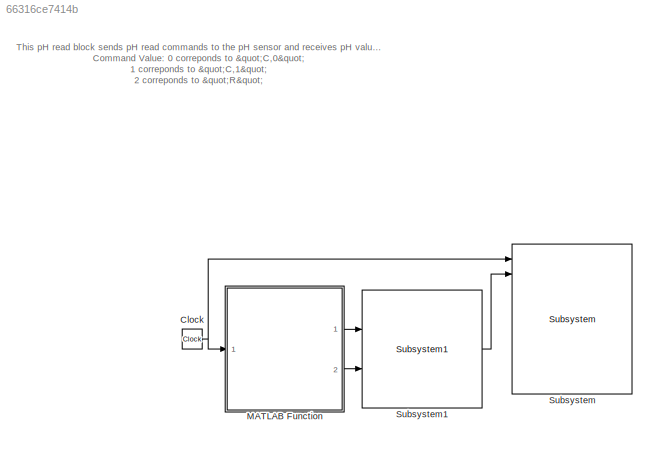
MODEL slx_66316ce7414b
KIND model
CONFIG AbsTol = auto
CONFIG EnableMultiTasking = on
CONFIG FixedStep = 1
CONFIG MaxStep = auto
CONFIG MinStep = auto
CONFIG RelTol = 1e-3
CONFIG SampleTimeConstraint = Unconstrained
CONFIG Solver = FixedStepDiscrete
CONFIG SolverName = FixedStepDiscrete
CONFIG StartTime = 0.0
CONFIG StopTime = 500
BLOCK [Clock] Clock
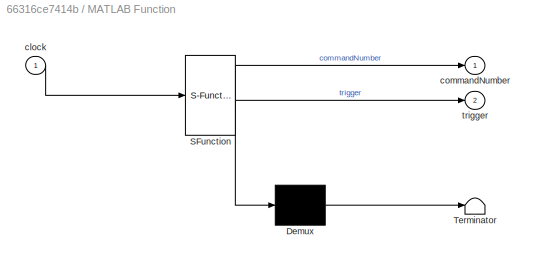
BLOCK [SubSystem] MATLAB Function
  ErrorFcn = Stateflow.Translate.translate
  PermitHierarchicalResolution = ExplicitOnly
  Ports = [1, 2]
  RequestExecContextInheritance = off
  SFBlockType = MATLAB Function
  TreatAsAtomicUnit = on
  Variant = off
BLOCK [Demux] MATLAB Function/ Demux 
  Outputs = 1
  Ports = [1, 1]
BLOCK [S-Function] MATLAB Function/ SFunction 
  EnableBusSupport = on
  FunctionName = sf_sfun
  PortCounts = [1 3]
  Ports = [1, 3]
  SFcnIsStateOwnerBlock = off
  SFunctionDeploymentMode = off
  Tag = Stateflow S-Function pHSystemRead 2
BLOCK [Terminator] MATLAB Function/ Terminator 
BLOCK [Inport] MATLAB Function/clock
  IconDisplay = Port number
BLOCK [Outport] MATLAB Function/commandNumber
  IconDisplay = Port number
BLOCK [Outport] MATLAB Function/trigger
  IconDisplay = Port number
  Port = 2
BLOCK [Reference] Subsystem  REF=EEE481Arduino/Subsystem
  Ports = [9, 3]
  SourceBlock = EEE481Arduino/Subsystem
BLOCK [Reference] Subsystem1  REF=EEE481Arduino/Subsystem1
  Ports = [2, 1]
  SourceBlock = EEE481Arduino/Subsystem1
ANNOTATION (root): This pH read block sends pH read commands to the pH sensor and receives pH values from the sensor using UART serial communication protocol. Trigger value of 1 makes it send command on the command bus to the pH sensor Command Value: 0 correponds to "C,0" 1 correponds to "C,1" 2 correponds to "R"
NET Clock:1 -> MATLAB Function:1, Subsystem:1
LINE MATLAB Function:1 -> Subsystem1:1
LINE MATLAB Function:2 -> Subsystem1:2
LINE Subsystem1:1 -> Subsystem:2
note: NET lines group one-source signal fan-out (src -> all destinations, sorted); 1:1 wires keep LINE
CHART MATLAB Function states=1 transitions=1
  STATE_LABEL 'eML_blk_kernel()'
  STATE_LABEL 'SCRIPT:\nfunction [commandNumber,trigger] = QueryPHSensor(clock)\n%#codegen\nif(clock<2)\n    commandNumber=int8(1);\nelseif(clock>=100&&clock<200)\n    commandNumber=int8(0);\nelse\n    commandNumber=int8(2);\nend\nif(clock<2||clock==100||clock>=200)\n    trigger=int8(1);\nelse\n    trigger=int8(0);\nend\nend'
